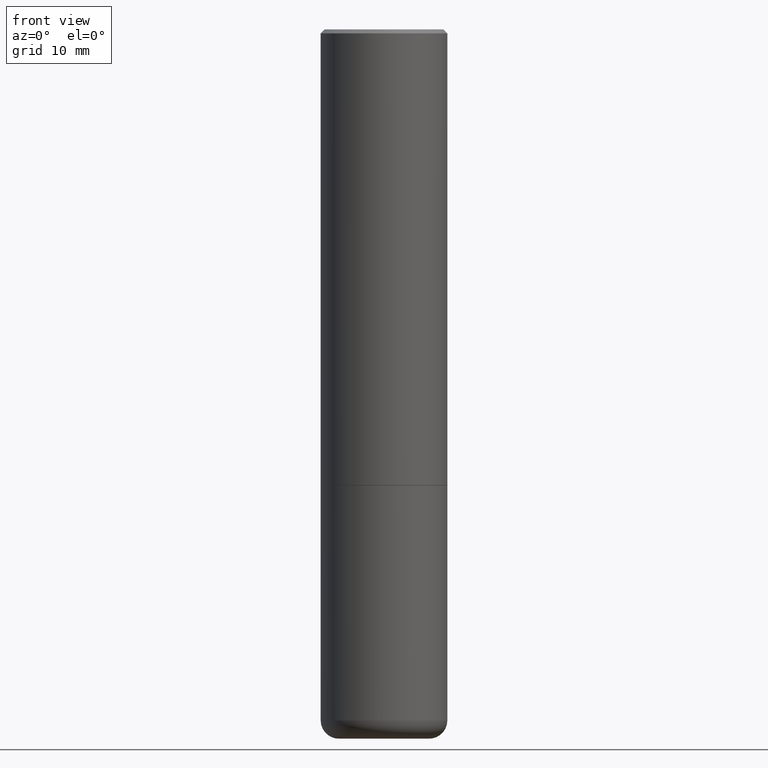
[diagram: clean part render]
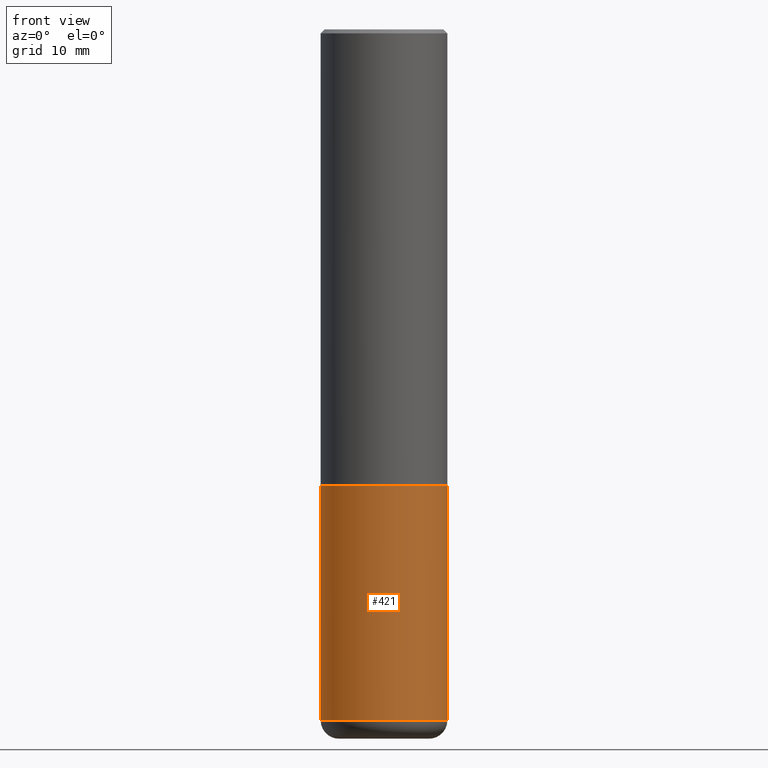
[diagram: same view with one face highlighted and labeled with its STEP entity id]
A machine part, front view. The second image highlights one B-rep face of the part: STEP entity #421.
In plain terms, the highlighted cylindrical surface (partial cylindrical patch) has radius 7.9375 mm, axis along (-0, 0, 1).
Its self-contained STEP definition (entity closure, byte-faithful):
#3 = CARTESIAN_POINT ( 'NONE',  ( 0.3125000000000001665, -2.182175836776959530E-15, 1.523805242436230636E-29 ) ) ;
#6 = CIRCLE ( 'NONE', #253, 0.3125000000000002776 ) ;
#10 = EDGE_LOOP ( 'NONE', ( #137, #77, #236, #417 ) ) ;
#12 = VERTEX_POINT ( 'NONE', #175 ) ;
#40 = DIRECTION ( 'NONE',  ( -2.445468806185136877E-29, 3.491481338843145188E-15, 1.000000000000000000 ) ) ;
#46 = CARTESIAN_POINT ( 'NONE',  ( -0.3125000000000000000, -7.660661462598133760E-15, -2.249999999999999556 ) ) ;
#62 = DIRECTION ( 'NONE',  ( -2.445468806185136597E-29, 3.491481338843145583E-15, 1.000000000000000000 ) ) ;
#73 = VERTEX_POINT ( 'NONE', #46 ) ;
#77 = ORIENTED_EDGE ( 'NONE', *, *, #84, .T. ) ;
#80 = CARTESIAN_POINT ( 'NONE',  ( 8.339350257792001869E-29, -1.190638201129981839E-14, -3.410123341872087543 ) ) ;
#82 = VERTEX_POINT ( 'NONE', #381 ) ;
#84 = EDGE_CURVE ( 'NONE', #12, #82, #6, .T. ) ;
#100 = LINE ( 'NONE', #371, #365 ) ;
#107 = VECTOR ( 'NONE', #310, 39.37007874015748143 ) ;
#108 = CARTESIAN_POINT ( 'NONE',  ( 5.502304813916556222E-29, -7.855833012397075293E-15, -2.249999999999999556 ) ) ;
#115 = EDGE_CURVE ( 'NONE', #82, #197, #233, .T. ) ;
#120 = EDGE_CURVE ( 'NONE', #73, #197, #281, .T. ) ;
#130 = DIRECTION ( 'NONE',  ( -2.445468806185136597E-29, 3.491481338843145583E-15, 1.000000000000000000 ) ) ;
#137 = ORIENTED_EDGE ( 'NONE', *, *, #152, .F. ) ;
#152 = EDGE_CURVE ( 'NONE', #12, #73, #100, .T. ) ;
#160 = DIRECTION ( 'NONE',  ( -2.445468806185136597E-29, 3.491481338843145583E-15, 1.000000000000000000 ) ) ;
#175 = CARTESIAN_POINT ( 'NONE',  ( -0.3125000000000002776, -7.660661462598130604E-15, -3.410123341872087543 ) ) ;
#192 = CARTESIAN_POINT ( 'NONE',  ( 0.3125000000000000000, -1.003800884917403364E-14, -2.249999999999999556 ) ) ;
#197 = VERTEX_POINT ( 'NONE', #192 ) ;
#203 = DIRECTION ( 'NONE',  ( 1.000000000000000000, -6.982962677686269077E-15, 0.000000000000000000 ) ) ;
#233 = LINE ( 'NONE', #3, #107 ) ;
#236 = ORIENTED_EDGE ( 'NONE', *, *, #115, .T. ) ;
#246 = DIRECTION ( 'NONE',  ( 1.000000000000000000, -6.982962677686265133E-15, 0.000000000000000000 ) ) ;
#253 = AXIS2_PLACEMENT_3D ( 'NONE', #80, #160, #203 ) ;
#277 = AXIS2_PLACEMENT_3D ( 'NONE', #108, #130, #246 ) ;
#281 = CIRCLE ( 'NONE', #277, 0.3125000000000000000 ) ;
#310 = DIRECTION ( 'NONE',  ( -2.445468806185136877E-29, 3.491481338843145188E-15, 1.000000000000000000 ) ) ;
#314 = AXIS2_PLACEMENT_3D ( 'NONE', #430, #62, #322 ) ;
#322 = DIRECTION ( 'NONE',  ( 1.000000000000000000, -6.982962677686266711E-15, 4.876176775795935232E-29 ) ) ;
#362 = FACE_OUTER_BOUND ( 'NONE', #10, .T. ) ;
#365 = VECTOR ( 'NONE', #40, 39.37007874015748143 ) ;
#371 = CARTESIAN_POINT ( 'NONE',  ( -0.3125000000000001665, 2.220446049250314264E-15, -1.537167215704658792E-29 ) ) ;
#381 = CARTESIAN_POINT ( 'NONE',  ( 0.3125000000000002776, -1.408855784807677831E-14, -3.410123341872087543 ) ) ;
#391 = CYLINDRICAL_SURFACE ( 'NONE', #314, 0.3125000000000001665 ) ;
#417 = ORIENTED_EDGE ( 'NONE', *, *, #120, .F. ) ;
#421 = ADVANCED_FACE ( 'NONE', ( #362 ), #391, .T. ) ;
#430 = CARTESIAN_POINT ( 'NONE',  ( 0.000000000000000000, 0.000000000000000000, 0.000000000000000000 ) ) ;